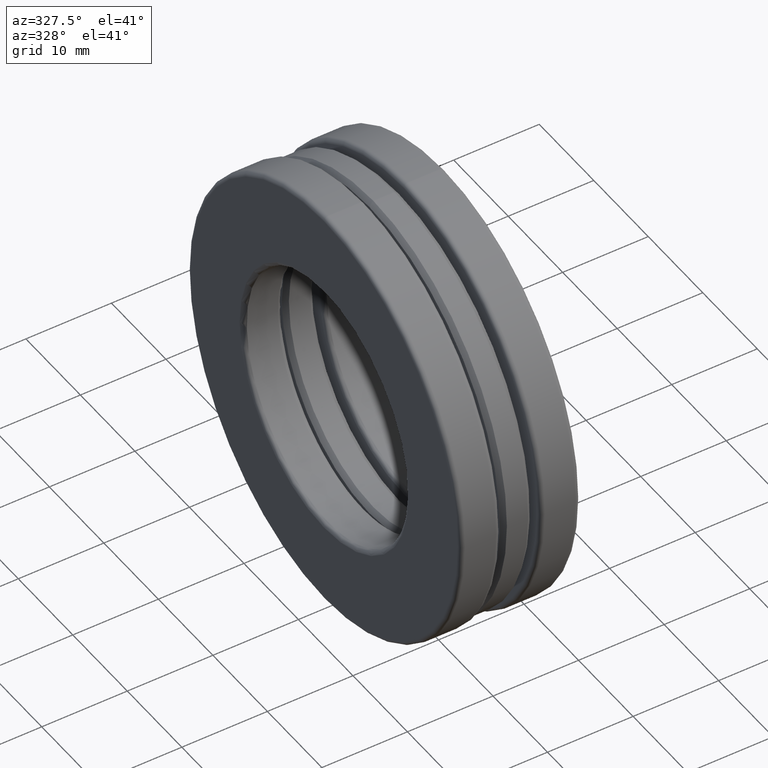
[diagram: clean part render]
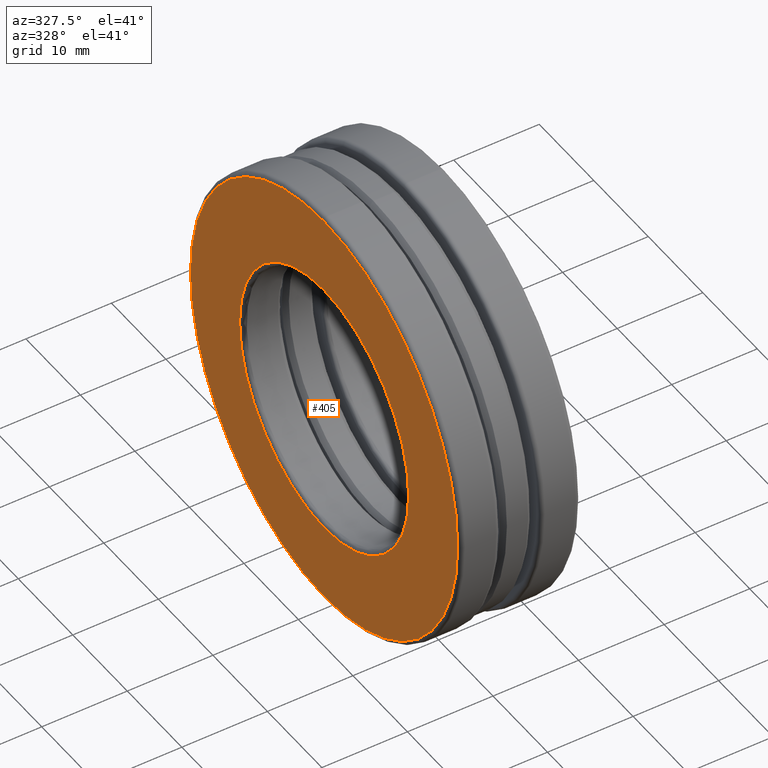
[diagram: same view with one face highlighted and labeled with its STEP entity id]
A machine part, auxiliary view. The second image highlights one B-rep face of the part: STEP entity #405.
In plain terms, the highlighted planar face has unit normal (1, 0, 0).
Its self-contained STEP definition (entity closure, byte-faithful):
#19 = ORIENTED_EDGE ( 'NONE', *, *, #206, .T. ) ;
#20 = DIRECTION ( 'NONE',  ( 0.0000000000000000000, 0.0000000000000000000, -1.000000000000000000 ) ) ;
#33 = VERTEX_POINT ( 'NONE', #349 ) ;
#39 = DIRECTION ( 'NONE',  ( 0.0000000000000000000, 0.0000000000000000000, 1.000000000000000000 ) ) ;
#65 = EDGE_LOOP ( 'NONE', ( #19 ) ) ;
#90 = AXIS2_PLACEMENT_3D ( 'NONE', #193, #391, #20 ) ;
#91 = CIRCLE ( 'NONE', #249, 0.6105000000000000400 ) ;
#119 = ORIENTED_EDGE ( 'NONE', *, *, #386, .F. ) ;
#193 = CARTESIAN_POINT ( 'NONE',  ( -0.2755000000000000200, -5.315142106317119500E-017, 0.0000000000000000000 ) ) ;
#206 = EDGE_CURVE ( 'NONE', #253, #253, #478, .T. ) ;
#209 = FACE_OUTER_BOUND ( 'NONE', #65, .T. ) ;
#236 = CARTESIAN_POINT ( 'NONE',  ( -0.2755000000000000800, 0.0000000000000000000, 0.9645000000000000200 ) ) ;
#237 = DIRECTION ( 'NONE',  ( -1.000000000000000000, -0.0000000000000000000, -0.0000000000000000000 ) ) ;
#249 = AXIS2_PLACEMENT_3D ( 'NONE', #804, #441, #39 ) ;
#253 = VERTEX_POINT ( 'NONE', #236 ) ;
#348 = EDGE_LOOP ( 'NONE', ( #119 ) ) ;
#349 = CARTESIAN_POINT ( 'NONE',  ( -0.2755000000000000200, 0.0000000000000000000, 0.6105000000000000400 ) ) ;
#368 = CARTESIAN_POINT ( 'NONE',  ( -0.2755000000000000800, 0.0000000000000000000, 0.0000000000000000000 ) ) ;
#386 = EDGE_CURVE ( 'NONE', #33, #33, #91, .T. ) ;
#391 = DIRECTION ( 'NONE',  ( 1.000000000000000000, 0.0000000000000000000, 0.0000000000000000000 ) ) ;
#405 = ADVANCED_FACE ( 'NONE', ( #687, #209 ), #513, .F. ) ;
#436 = DIRECTION ( 'NONE',  ( 0.0000000000000000000, 0.0000000000000000000, 1.000000000000000000 ) ) ;
#441 = DIRECTION ( 'NONE',  ( -1.000000000000000000, -0.0000000000000000000, -0.0000000000000000000 ) ) ;
#478 = CIRCLE ( 'NONE', #578, 0.9645000000000000200 ) ;
#513 = PLANE ( 'NONE',  #90 ) ;
#578 = AXIS2_PLACEMENT_3D ( 'NONE', #368, #237, #436 ) ;
#687 = FACE_BOUND ( 'NONE', #348, .T. ) ;
#804 = CARTESIAN_POINT ( 'NONE',  ( -0.2755000000000000200, 0.0000000000000000000, 0.0000000000000000000 ) ) ;